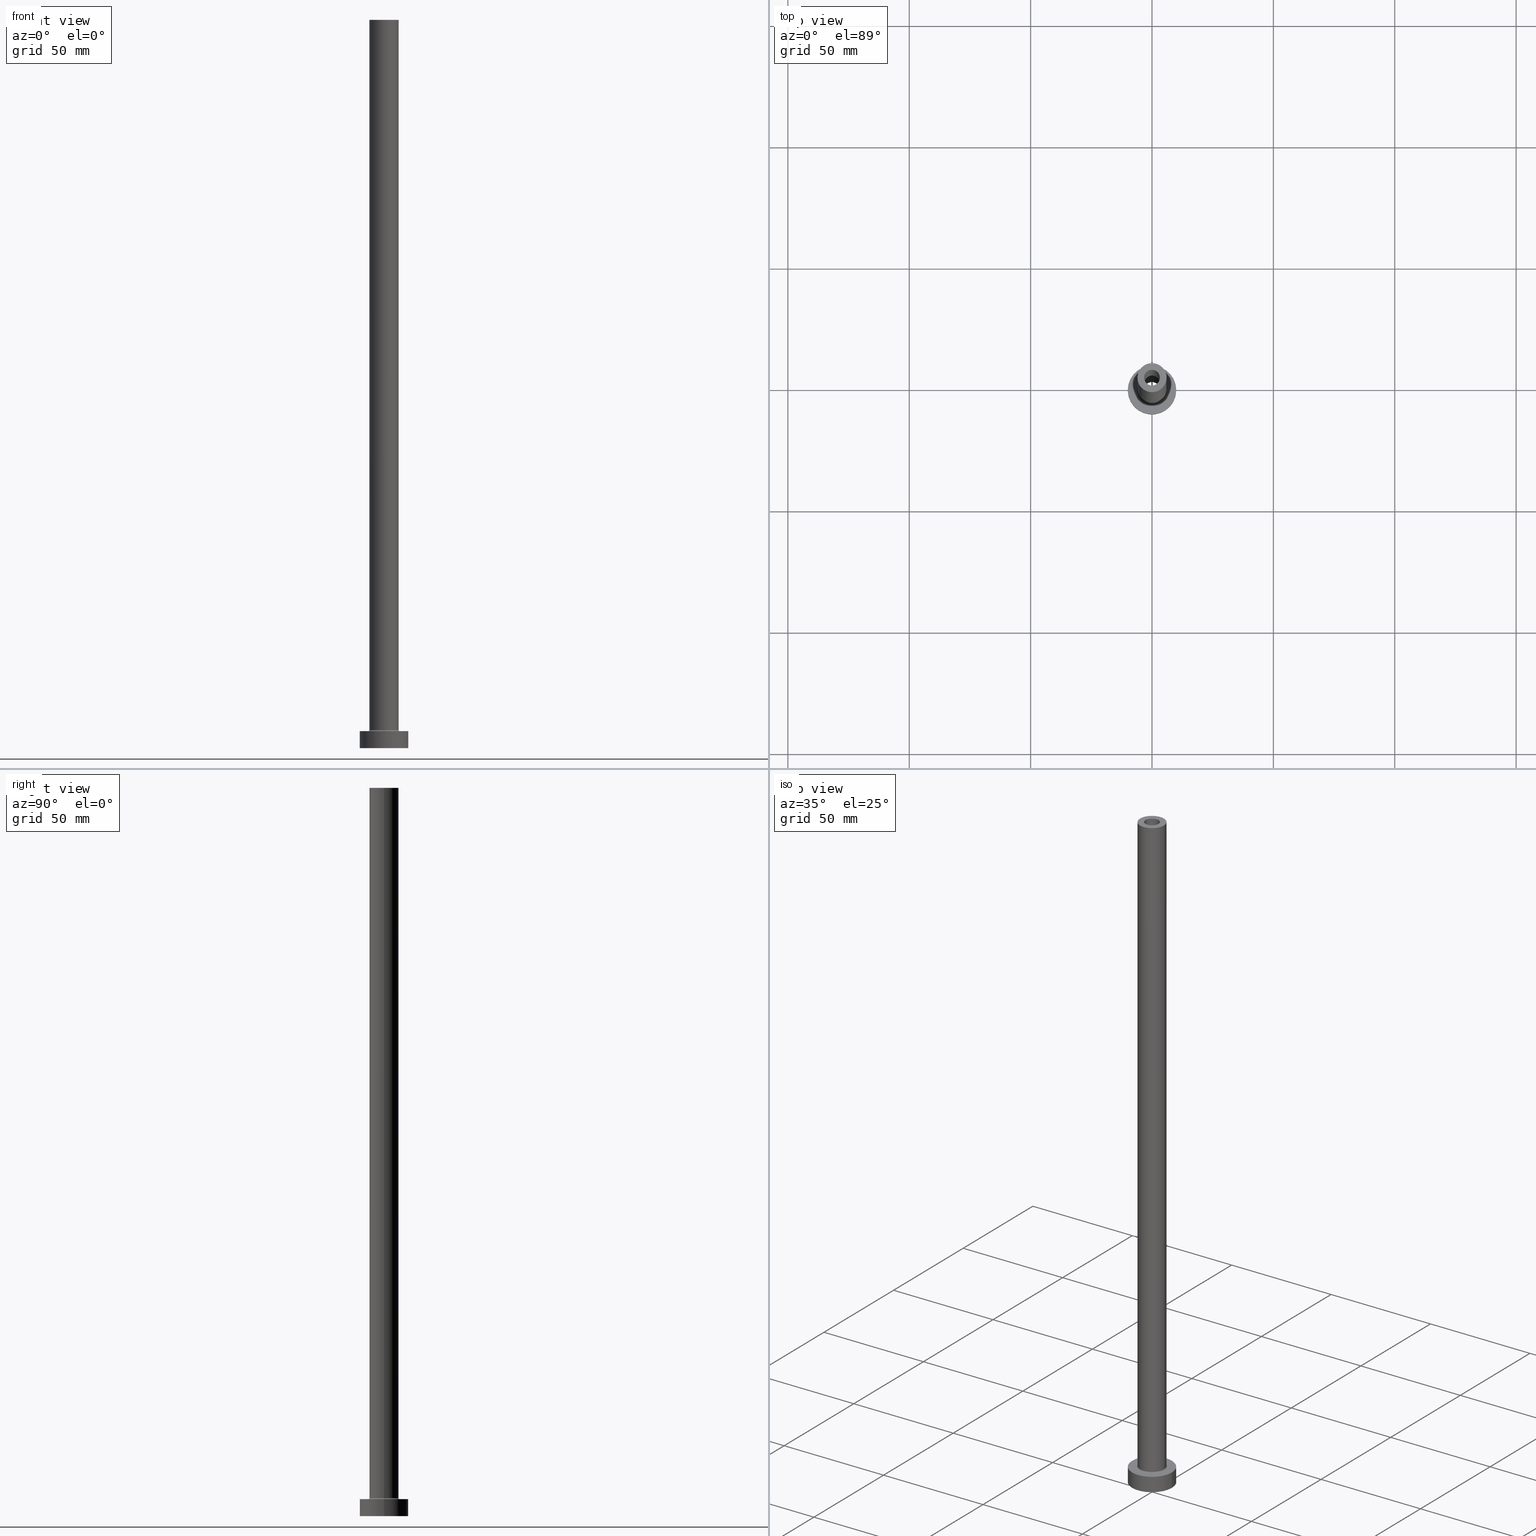
[diagram: canonical four-view strip — front | top / right | iso, engineering-drawing reading convention]
A machine part, canonical four-view strip (front | top / right | iso — engineering-drawing reading convention). The complete STEP part file that produces these views, byte-faithful:
ISO-10303-21;
HEADER;
FILE_DESCRIPTION (( 'STEP AP203' ),
    '1' );
FILE_NAME ('3f22.STEP',
    '2023-02-13T13:30:54',
    ( '' ),
    ( '' ),
    'SwSTEP 2.0',
    'SolidWorks 2019',
    '' );
FILE_SCHEMA (( 'CONFIG_CONTROL_DESIGN' ));
ENDSEC;

DATA;
#1 = APPROVAL_STATUS ( 'not_yet_approved' ) ;
#2 = CARTESIAN_POINT ( 'NONE',  ( -10.00000000000000000, 0.000000000000000000, 7.000000000000000000 ) ) ;
#3 = SHAPE_DEFINITION_REPRESENTATION ( #170, #97 ) ;
#4 = ORIENTED_EDGE ( 'NONE', *, *, #354, .F. ) ;
#5 = CYLINDRICAL_SURFACE ( 'NONE', #333, 10.00000000000000000 ) ;
#6 = AXIS2_PLACEMENT_3D ( 'NONE', #75, #185, #42 ) ;
#7 = FACE_OUTER_BOUND ( 'NONE', #77, .T. ) ;
#8 = PERSON_AND_ORGANIZATION ( #56, #309 ) ;
#9 = ORIENTED_EDGE ( 'NONE', *, *, #376, .T. ) ;
#10 = DIRECTION ( 'NONE',  ( 0.000000000000000000, 0.000000000000000000, -1.000000000000000000 ) ) ;
#11 = PERSON_AND_ORGANIZATION_ROLE ( 'creator' ) ;
#12 = FACE_OUTER_BOUND ( 'NONE', #404, .T. ) ;
#13 = DATE_TIME_ROLE ( 'creation_date' ) ;
#14 = ORIENTED_EDGE ( 'NONE', *, *, #307, .T. ) ;
#15 = TOROIDAL_SURFACE ( 'NONE', #172, 6.500000000000000888, 0.5000000000000000000 ) ;
#16 = LOCAL_TIME ( 14, 30, 53.00000000000000000, #369 ) ;
#17 = AXIS2_PLACEMENT_3D ( 'NONE', #322, #145, #283 ) ;
#18 = CARTESIAN_POINT ( 'NONE',  ( -6.500000000000000888, 7.960204194457796463E-16, 7.000000000000002665 ) ) ;
#19 = ORIENTED_EDGE ( 'NONE', *, *, #104, .F. ) ;
#20 = DIRECTION ( 'NONE',  ( 1.000000000000000000, 0.000000000000000000, 0.000000000000000000 ) ) ;
#21 = DIRECTION ( 'NONE',  ( 1.000000000000000000, 0.000000000000000000, 0.000000000000000000 ) ) ;
#22 = VERTEX_POINT ( 'NONE', #90 ) ;
#23 = CARTESIAN_POINT ( 'NONE',  ( 0.000000000000000000, 0.000000000000000000, 300.0000000000000000 ) ) ;
#24 = CARTESIAN_POINT ( 'NONE',  ( 0.000000000000000000, 0.000000000000000000, 300.0000000000000000 ) ) ;
#25 = ORIENTED_EDGE ( 'NONE', *, *, #278, .T. ) ;
#26 = ORIENTED_EDGE ( 'NONE', *, *, #278, .F. ) ;
#27 = APPROVAL_PERSON_ORGANIZATION ( #220, #455, #81 ) ;
#28 = EDGE_CURVE ( 'NONE', #246, #31, #419, .T. ) ;
#29 = EDGE_CURVE ( 'NONE', #443, #434, #211, .T. ) ;
#30 = DIRECTION ( 'NONE',  ( -1.000000000000000000, 0.000000000000000000, 0.000000000000000000 ) ) ;
#31 = VERTEX_POINT ( 'NONE', #128 ) ;
#32 = DIRECTION ( 'NONE',  ( 0.000000000000000000, 0.000000000000000000, -1.000000000000000000 ) ) ;
#33 = LINE ( 'NONE', #458, #166 ) ;
#34 = CARTESIAN_POINT ( 'NONE',  ( 0.000000000000000000, 0.000000000000000000, 7.000000000000000000 ) ) ;
#35 = CIRCLE ( 'NONE', #107, 3.399999999999999911 ) ;
#36 = CARTESIAN_POINT ( 'NONE',  ( 0.000000000000000000, 0.000000000000000000, 0.000000000000000000 ) ) ;
#37 = ORIENTED_EDGE ( 'NONE', *, *, #139, .F. ) ;
#38 = DIRECTION ( 'NONE',  ( 1.000000000000000000, 0.000000000000000000, 0.000000000000000000 ) ) ;
#39 = EDGE_CURVE ( 'NONE', #22, #120, #432, .T. ) ;
#40 = LINE ( 'NONE', #2, #243 ) ;
#41 = ORIENTED_EDGE ( 'NONE', *, *, #429, .T. ) ;
#42 = DIRECTION ( 'NONE',  ( 1.000000000000000000, 0.000000000000000000, 0.000000000000000000 ) ) ;
#43 = DATE_TIME_ROLE ( 'classification_date' ) ;
#44 = DIRECTION ( 'NONE',  ( -0.000000000000000000, -0.000000000000000000, -1.000000000000000000 ) ) ;
#45 = PLANE ( 'NONE',  #261 ) ;
#46 = ORIENTED_EDGE ( 'NONE', *, *, #303, .F. ) ;
#47 = APPLICATION_PROTOCOL_DEFINITION ( 'international standard', 'config_control_design', 1994, #352 ) ;
#48 = VERTEX_POINT ( 'NONE', #304 ) ;
#49 = CARTESIAN_POINT ( 'NONE',  ( 0.000000000000000000, 0.000000000000000000, 7.000000000000000000 ) ) ;
#50 = PERSON_AND_ORGANIZATION_ROLE ( 'design_owner' ) ;
#51 = VERTEX_POINT ( 'NONE', #382 ) ;
#52 = DIRECTION ( 'NONE',  ( 1.224646799147353207E-16, 1.000000000000000000, -0.000000000000000000 ) ) ;
#53 = CARTESIAN_POINT ( 'NONE',  ( 0.000000000000000000, 0.000000000000000000, 7.500000000000007105 ) ) ;
#54 = EDGE_CURVE ( 'NONE', #85, #209, #192, .T. ) ;
#55 = ORIENTED_EDGE ( 'NONE', *, *, #354, .T. ) ;
#56 = PERSON ( 'NEUR�EN�', 'NEUR�EN�', 'NEUR�EN�', ('NEUR�EN�'), ('NEUR�EN�'), ('NEUR�EN�') ) ;
#57 = AXIS2_PLACEMENT_3D ( 'NONE', #23, #410, #93 ) ;
#58 = CC_DESIGN_PERSON_AND_ORGANIZATION_ASSIGNMENT ( #8, #289, ( #431 ) ) ;
#59 = ADVANCED_FACE ( 'NONE', ( #266, #84 ), #45, .F. ) ;
#60 = ORIENTED_EDGE ( 'NONE', *, *, #29, .F. ) ;
#61 = CARTESIAN_POINT ( 'NONE',  ( 0.000000000000000000, 0.000000000000000000, 7.000000000000000000 ) ) ;
#62 = ORIENTED_EDGE ( 'NONE', *, *, #188, .T. ) ;
#63 = AXIS2_PLACEMENT_3D ( 'NONE', #53, #201, #344 ) ;
#64 = CC_DESIGN_APPROVAL ( #160, ( #306 ) ) ;
#65 = FACE_BOUND ( 'NONE', #126, .T. ) ;
#66 = EDGE_CURVE ( 'NONE', #209, #22, #371, .T. ) ;
#67 = ORIENTED_EDGE ( 'NONE', *, *, #307, .F. ) ;
#68 = PLANE ( 'NONE',  #176 ) ;
#69 = CIRCLE ( 'NONE', #378, 3.250000000000000444 ) ;
#70 = CIRCLE ( 'NONE', #227, 3.399999999999999911 ) ;
#71 = CC_DESIGN_PERSON_AND_ORGANIZATION_ASSIGNMENT ( #403, #11, ( #306 ) ) ;
#72 = EDGE_CURVE ( 'NONE', #401, #48, #35, .T. ) ;
#73 = DIRECTION ( 'NONE',  ( -1.000000000000000000, 0.000000000000000000, 0.000000000000000000 ) ) ;
#74 = ORIENTED_EDGE ( 'NONE', *, *, #191, .T. ) ;
#75 = CARTESIAN_POINT ( 'NONE',  ( 0.000000000000000000, 0.000000000000000000, 7.500000000000007105 ) ) ;
#76 = CYLINDRICAL_SURFACE ( 'NONE', #96, 6.000000000000000888 ) ;
#77 = EDGE_LOOP ( 'NONE', ( #26, #305, #9, #113 ) ) ;
#78 = PLANE ( 'NONE',  #315 ) ;
#79 = DIRECTION ( 'NONE',  ( 1.000000000000000000, 0.000000000000000000, 0.000000000000000000 ) ) ;
#80 = AXIS2_PLACEMENT_3D ( 'NONE', #123, #258, #379 ) ;
#81 = APPROVAL_ROLE ( '' ) ;
#82 = DIRECTION ( 'NONE',  ( 0.000000000000000000, 0.000000000000000000, 1.000000000000000000 ) ) ;
#83 = ORIENTED_EDGE ( 'NONE', *, *, #138, .T. ) ;
#84 = FACE_OUTER_BOUND ( 'NONE', #335, .T. ) ;
#85 = VERTEX_POINT ( 'NONE', #433 ) ;
#86 = CIRCLE ( 'NONE', #271, 3.399999999999999911 ) ;
#87 = DIRECTION ( 'NONE',  ( 0.000000000000000000, 0.000000000000000000, 1.000000000000000000 ) ) ;
#88 = APPROVAL_STATUS ( 'not_yet_approved' ) ;
#89 = EDGE_LOOP ( 'NONE', ( #60, #295, #62, #37 ) ) ;
#90 = CARTESIAN_POINT ( 'NONE',  ( -6.000000000000000888, 0.000000000000000000, 7.500000000000007105 ) ) ;
#91 = DIRECTION ( 'NONE',  ( 1.000000000000000000, 0.000000000000000000, 0.000000000000000000 ) ) ;
#92 = VERTEX_POINT ( 'NONE', #255 ) ;
#93 = DIRECTION ( 'NONE',  ( 1.000000000000000000, 0.000000000000000000, 0.000000000000000000 ) ) ;
#94 = AXIS2_PLACEMENT_3D ( 'NONE', #182, #277, #179 ) ;
#95 = CIRCLE ( 'NONE', #349, 6.500000000000000888 ) ;
#96 = AXIS2_PLACEMENT_3D ( 'NONE', #108, #111, #73 ) ;
#97 = ADVANCED_BREP_SHAPE_REPRESENTATION ( '3f22', ( #370, #390 ), #314 ) ;
#98 = CARTESIAN_POINT ( 'NONE',  ( -3.250000000000000444, 0.000000000000000000, 300.0000000000000000 ) ) ;
#99 = DIRECTION ( 'NONE',  ( 1.000000000000000000, 0.000000000000000000, 0.000000000000000000 ) ) ;
#100 = DIRECTION ( 'NONE',  ( 0.000000000000000000, 0.000000000000000000, -1.000000000000000000 ) ) ;
#101 = LOCAL_TIME ( 14, 30, 53.00000000000000000, #316 ) ;
#102 = FACE_OUTER_BOUND ( 'NONE', #268, .T. ) ;
#103 = CC_DESIGN_DATE_AND_TIME_ASSIGNMENT ( #253, #43, ( #262 ) ) ;
#104 = EDGE_CURVE ( 'NONE', #31, #246, #154, .T. ) ;
#105 = CIRCLE ( 'NONE', #373, 10.00000000000000000 ) ;
#106 = APPROVAL_PERSON_ORGANIZATION ( #301, #160, #447 ) ;
#107 = AXIS2_PLACEMENT_3D ( 'NONE', #189, #331, #297 ) ;
#108 = CARTESIAN_POINT ( 'NONE',  ( 0.000000000000000000, 0.000000000000000000, 300.0000000000000000 ) ) ;
#109 = ORIENTED_EDGE ( 'NONE', *, *, #54, .T. ) ;
#110 = CARTESIAN_POINT ( 'NONE',  ( 0.000000000000000000, 0.000000000000000000, 7.000000000000000000 ) ) ;
#111 = DIRECTION ( 'NONE',  ( -0.000000000000000000, -0.000000000000000000, -1.000000000000000000 ) ) ;
#112 = DATE_AND_TIME ( #178, #16 ) ;
#113 = ORIENTED_EDGE ( 'NONE', *, *, #125, .F. ) ;
#114 = DIRECTION ( 'NONE',  ( 0.000000000000000000, 0.000000000000000000, 1.000000000000000000 ) ) ;
#115 = DIRECTION ( 'NONE',  ( -0.000000000000000000, -0.000000000000000000, -1.000000000000000000 ) ) ;
#116 = CALENDAR_DATE ( 2023, 13, 2 ) ;
#117 = LOCAL_TIME ( 14, 30, 53.00000000000000000, #152 ) ;
#118 = AXIS2_PLACEMENT_3D ( 'NONE', #61, #313, #135 ) ;
#119 = APPROVAL_STATUS ( 'not_yet_approved' ) ;
#120 = VERTEX_POINT ( 'NONE', #18 ) ;
#121 = APPROVAL_DATE_TIME ( #374, #160 ) ;
#122 = ORIENTED_EDGE ( 'NONE', *, *, #39, .T. ) ;
#123 = CARTESIAN_POINT ( 'NONE',  ( 0.000000000000000000, 0.000000000000000000, 300.0000000000000000 ) ) ;
#124 = APPROVAL ( #119, 'NEUR�EN�' ) ;
#125 = EDGE_CURVE ( 'NONE', #347, #92, #69, .T. ) ;
#126 = EDGE_LOOP ( 'NONE', ( #339, #298 ) ) ;
#127 = EDGE_CURVE ( 'NONE', #22, #51, #336, .T. ) ;
#128 = CARTESIAN_POINT ( 'NONE',  ( 3.250000000000000444, 3.980102097228897245E-16, 300.0000000000000000 ) ) ;
#129 = CARTESIAN_POINT ( 'NONE',  ( -3.250000000000000444, 0.000000000000000000, 300.0000000000000000 ) ) ;
#130 = DIRECTION ( 'NONE',  ( 1.000000000000000000, 0.000000000000000000, 0.000000000000000000 ) ) ;
#131 = ORIENTED_EDGE ( 'NONE', *, *, #415, .F. ) ;
#132 = VECTOR ( 'NONE', #383, 1000.000000000000000 ) ;
#133 = CYLINDRICAL_SURFACE ( 'NONE', #254, 3.399999999999999911 ) ;
#134 = AXIS2_PLACEMENT_3D ( 'NONE', #400, #82, #334 ) ;
#135 = DIRECTION ( 'NONE',  ( 1.000000000000000000, 0.000000000000000000, -0.000000000000000000 ) ) ;
#136 = ORIENTED_EDGE ( 'NONE', *, *, #357, .T. ) ;
#137 = ADVANCED_FACE ( 'NONE', ( #251, #12 ), #78, .T. ) ;
#138 = EDGE_CURVE ( 'NONE', #85, #51, #187, .T. ) ;
#139 = EDGE_CURVE ( 'NONE', #434, #256, #40, .T. ) ;
#140 = CARTESIAN_POINT ( 'NONE',  ( 6.500000000000000888, 0.000000000000000000, 7.000000000000002665 ) ) ;
#141 = AXIS2_PLACEMENT_3D ( 'NONE', #263, #52, #230 ) ;
#142 = CC_DESIGN_APPROVAL ( #455, ( #262 ) ) ;
#143 = VERTEX_POINT ( 'NONE', #366 ) ;
#144 = DIRECTION ( 'NONE',  ( -1.000000000000000000, 0.000000000000000000, 0.000000000000000000 ) ) ;
#145 = DIRECTION ( 'NONE',  ( 0.000000000000000000, 0.000000000000000000, -1.000000000000000000 ) ) ;
#146 = APPROVAL_DATE_TIME ( #112, #455 ) ;
#147 = ORIENTED_EDGE ( 'NONE', *, *, #233, .T. ) ;
#148 = DIRECTION ( 'NONE',  ( 0.000000000000000000, 0.000000000000000000, -1.000000000000000000 ) ) ;
#149 = PERSON_AND_ORGANIZATION ( #56, #309 ) ;
#150 = CARTESIAN_POINT ( 'NONE',  ( 0.000000000000000000, 0.000000000000000000, 0.000000000000000000 ) ) ;
#151 = DIRECTION ( 'NONE',  ( 1.000000000000000000, 0.000000000000000000, -0.000000000000000000 ) ) ;
#152 = COORDINATED_UNIVERSAL_TIME_OFFSET ( 1, 0, .AHEAD. ) ;
#153 = DIRECTION ( 'NONE',  ( 1.000000000000000000, 0.000000000000000000, -0.000000000000000000 ) ) ;
#154 = CIRCLE ( 'NONE', #134, 3.250000000000000444 ) ;
#155 = ORIENTED_EDGE ( 'NONE', *, *, #357, .F. ) ;
#156 = CC_DESIGN_APPROVAL ( #124, ( #431 ) ) ;
#157 = AXIS2_PLACEMENT_3D ( 'NONE', #287, #361, #38 ) ;
#158 = CARTESIAN_POINT ( 'NONE',  ( 0.000000000000000000, 0.000000000000000000, 255.0000000000000000 ) ) ;
#159 = EDGE_LOOP ( 'NONE', ( #14, #387 ) ) ;
#160 = APPROVAL ( #88, 'NEUR�EN�' ) ;
#161 = ADVANCED_FACE ( 'NONE', ( #395 ), #76, .T. ) ;
#162 = DIRECTION ( 'NONE',  ( 0.000000000000000000, 0.000000000000000000, 1.000000000000000000 ) ) ;
#163 = EDGE_LOOP ( 'NONE', ( #343, #250 ) ) ;
#164 = CARTESIAN_POINT ( 'NONE',  ( -3.399999999999999911, 0.000000000000000000, 0.000000000000000000 ) ) ;
#165 = APPLICATION_PROTOCOL_DEFINITION ( 'international standard', 'config_control_design', 1994, #327 ) ;
#166 = VECTOR ( 'NONE', #100, 1000.000000000000000 ) ;
#167 = ORIENTED_EDGE ( 'NONE', *, *, #456, .F. ) ;
#168 = PRODUCT ( '3f22', '3f22', '', ( #260 ) ) ;
#169 = ORIENTED_EDGE ( 'NONE', *, *, #72, .F. ) ;
#170 = PRODUCT_DEFINITION_SHAPE ( 'NONE', 'NONE',  #306 ) ;
#171 = PLANE ( 'NONE',  #118 ) ;
#172 = AXIS2_PLACEMENT_3D ( 'NONE', #388, #207, #99 ) ;
#173 = CARTESIAN_POINT ( 'NONE',  ( 0.000000000000000000, 0.000000000000000000, 300.0000000000000000 ) ) ;
#174 = CYLINDRICAL_SURFACE ( 'NONE', #293, 3.399999999999999911 ) ;
#175 = UNCERTAINTY_MEASURE_WITH_UNIT (LENGTH_MEASURE( 1.000000000000000082E-05 ), #312, 'distance_accuracy_value', 'NONE');
#176 = AXIS2_PLACEMENT_3D ( 'NONE', #417, #208, #351 ) ;
#177 = VECTOR ( 'NONE', #10, 1000.000000000000000 ) ;
#178 = CALENDAR_DATE ( 2023, 13, 2 ) ;
#179 = DIRECTION ( 'NONE',  ( 0.000000000000000000, 0.000000000000000000, -1.000000000000000000 ) ) ;
#180 = EDGE_LOOP ( 'NONE', ( #450, #226, #74, #167 ) ) ;
#181 = CARTESIAN_POINT ( 'NONE',  ( 3.250000000000000444, 3.980102097228897245E-16, 255.0000000000000000 ) ) ;
#182 = CARTESIAN_POINT ( 'NONE',  ( 6.500000000000000888, 0.000000000000000000, 7.500000000000007105 ) ) ;
#183 = DATE_AND_TIME ( #398, #323 ) ;
#184 = EDGE_LOOP ( 'NONE', ( #320, #213, #360, #426 ) ) ;
#185 = DIRECTION ( 'NONE',  ( 0.000000000000000000, 0.000000000000000000, 1.000000000000000000 ) ) ;
#186 = COORDINATED_UNIVERSAL_TIME_OFFSET ( 1, 0, .AHEAD. ) ;
#187 = LINE ( 'NONE', #329, #308 ) ;
#188 = EDGE_CURVE ( 'NONE', #363, #256, #105, .T. ) ;
#189 = CARTESIAN_POINT ( 'NONE',  ( 0.000000000000000000, 0.000000000000000000, 255.0000000000000000 ) ) ;
#190 = CC_DESIGN_DATE_AND_TIME_ASSIGNMENT ( #359, #13, ( #306 ) ) ;
#191 = EDGE_CURVE ( 'NONE', #51, #205, #451, .T. ) ;
#192 = CIRCLE ( 'NONE', #310, 6.000000000000000888 ) ;
#193 = ORIENTED_EDGE ( 'NONE', *, *, #456, .T. ) ;
#194 = AXIS2_PLACEMENT_3D ( 'NONE', #264, #162, #408 ) ;
#195 = VECTOR ( 'NONE', #148, 1000.000000000000000 ) ;
#196 = CALENDAR_DATE ( 2023, 13, 2 ) ;
#197 = ORIENTED_EDGE ( 'NONE', *, *, #72, .T. ) ;
#198 = CYLINDRICAL_SURFACE ( 'NONE', #244, 3.250000000000000444 ) ;
#199 = ORIENTED_EDGE ( 'NONE', *, *, #446, .F. ) ;
#200 = CARTESIAN_POINT ( 'NONE',  ( 0.000000000000000000, 0.000000000000000000, 300.0000000000000000 ) ) ;
#201 = DIRECTION ( 'NONE',  ( 0.000000000000000000, 0.000000000000000000, 1.000000000000000000 ) ) ;
#202 = ORIENTED_EDGE ( 'NONE', *, *, #415, .T. ) ;
#203 = EDGE_LOOP ( 'NONE', ( #342, #83, #215, #423 ) ) ;
#204 = DIRECTION ( 'NONE',  ( -1.000000000000000000, 0.000000000000000000, 0.000000000000000000 ) ) ;
#205 = VERTEX_POINT ( 'NONE', #140 ) ;
#206 = EDGE_CURVE ( 'NONE', #443, #363, #319, .T. ) ;
#207 = DIRECTION ( 'NONE',  ( 0.000000000000000000, 0.000000000000000000, 1.000000000000000000 ) ) ;
#208 = DIRECTION ( 'NONE',  ( 0.000000000000000000, 0.000000000000000000, 1.000000000000000000 ) ) ;
#209 = VERTEX_POINT ( 'NONE', #362 ) ;
#210 = DIRECTION ( 'NONE',  ( 0.000000000000000000, 0.000000000000000000, 1.000000000000000000 ) ) ;
#211 = CIRCLE ( 'NONE', #386, 10.00000000000000000 ) ;
#212 = AXIS2_PLACEMENT_3D ( 'NONE', #247, #394, #91 ) ;
#213 = ORIENTED_EDGE ( 'NONE', *, *, #429, .F. ) ;
#214 = DIRECTION ( 'NONE',  ( -0.000000000000000000, -0.000000000000000000, -1.000000000000000000 ) ) ;
#215 = ORIENTED_EDGE ( 'NONE', *, *, #399, .T. ) ;
#216 = CYLINDRICAL_SURFACE ( 'NONE', #17, 3.250000000000000444 ) ;
#217 = AXIS2_PLACEMENT_3D ( 'NONE', #173, #210, #392 ) ;
#218 = DIRECTION ( 'NONE',  ( 1.000000000000000000, 0.000000000000000000, 0.000000000000000000 ) ) ;
#219 = DIRECTION ( 'NONE',  ( -1.000000000000000000, 0.000000000000000000, 0.000000000000000000 ) ) ;
#220 = PERSON_AND_ORGANIZATION ( #56, #309 ) ;
#221 = DIRECTION ( 'NONE',  ( 0.000000000000000000, 0.000000000000000000, 1.000000000000000000 ) ) ;
#222 = ADVANCED_FACE ( 'NONE', ( #7 ), #216, .F. ) ;
#223 = ORIENTED_EDGE ( 'NONE', *, *, #391, .F. ) ;
#224 = CARTESIAN_POINT ( 'NONE',  ( 0.000000000000000000, 0.000000000000000000, 0.000000000000000000 ) ) ;
#225 = CLOSED_SHELL ( 'NONE', ( #365, #267, #269, #161, #236, #270, #248, #59, #402, #137, #259, #237, #436, #222 ) ) ;
#226 = ORIENTED_EDGE ( 'NONE', *, *, #399, .F. ) ;
#227 = AXIS2_PLACEMENT_3D ( 'NONE', #228, #87, #20 ) ;
#228 = CARTESIAN_POINT ( 'NONE',  ( 0.000000000000000000, 0.000000000000000000, 255.0000000000000000 ) ) ;
#229 = ORIENTED_EDGE ( 'NONE', *, *, #28, .F. ) ;
#230 = DIRECTION ( 'NONE',  ( -1.000000000000000000, 1.224646799147351482E-16, 0.000000000000000000 ) ) ;
#231 = FACE_OUTER_BOUND ( 'NONE', #265, .T. ) ;
#232 = ORIENTED_EDGE ( 'NONE', *, *, #191, .F. ) ;
#233 = EDGE_CURVE ( 'NONE', #143, #372, #86, .T. ) ;
#234 = APPROVAL_PERSON_ORGANIZATION ( #149, #124, #280 ) ;
#235 = AXIS2_PLACEMENT_3D ( 'NONE', #110, #428, #79 ) ;
#236 = ADVANCED_FACE ( 'NONE', ( #452 ), #350, .T. ) ;
#237 = ADVANCED_FACE ( 'NONE', ( #414 ), #133, .F. ) ;
#238 = CARTESIAN_POINT ( 'NONE',  ( -10.00000000000000000, 0.000000000000000000, 0.000000000000000000 ) ) ;
#239 = FACE_OUTER_BOUND ( 'NONE', #159, .T. ) ;
#240 = DIRECTION ( 'NONE',  ( 1.000000000000000000, 0.000000000000000000, 0.000000000000000000 ) ) ;
#241 = CIRCLE ( 'NONE', #63, 6.000000000000000888 ) ;
#242 = DIRECTION ( 'NONE',  ( -0.000000000000000000, -0.000000000000000000, -1.000000000000000000 ) ) ;
#243 = VECTOR ( 'NONE', #214, 1000.000000000000000 ) ;
#244 = AXIS2_PLACEMENT_3D ( 'NONE', #24, #341, #300 ) ;
#245 = CARTESIAN_POINT ( 'NONE',  ( 10.00000000000000000, 1.224646799147353256E-15, 7.000000000000000000 ) ) ;
#246 = VERTEX_POINT ( 'NONE', #98 ) ;
#247 = CARTESIAN_POINT ( 'NONE',  ( 0.000000000000000000, 0.000000000000000000, 0.000000000000000000 ) ) ;
#248 = ADVANCED_FACE ( 'NONE', ( #457, #239 ), #171, .T. ) ;
#249 = DIRECTION ( 'NONE',  ( -0.000000000000000000, -0.000000000000000000, -1.000000000000000000 ) ) ;
#250 = ORIENTED_EDGE ( 'NONE', *, *, #233, .F. ) ;
#251 = FACE_BOUND ( 'NONE', #281, .T. ) ;
#252 = FACE_OUTER_BOUND ( 'NONE', #407, .T. ) ;
#253 = DATE_AND_TIME ( #116, #101 ) ;
#254 = AXIS2_PLACEMENT_3D ( 'NONE', #272, #32, #204 ) ;
#255 = CARTESIAN_POINT ( 'NONE',  ( -3.250000000000000444, 0.000000000000000000, 255.0000000000000000 ) ) ;
#256 = VERTEX_POINT ( 'NONE', #238 ) ;
#257 = ORIENTED_EDGE ( 'NONE', *, *, #446, .T. ) ;
#258 = DIRECTION ( 'NONE',  ( -0.000000000000000000, -0.000000000000000000, -1.000000000000000000 ) ) ;
#259 = ADVANCED_FACE ( 'NONE', ( #273 ), #15, .F. ) ;
#260 = MECHANICAL_CONTEXT ( 'NONE', #327, 'mechanical' ) ;
#261 = AXIS2_PLACEMENT_3D ( 'NONE', #150, #221, #153 ) ;
#262 = SECURITY_CLASSIFICATION ( '', '', #330 ) ;
#263 = CARTESIAN_POINT ( 'NONE',  ( -6.500000000000000888, 7.960204194457796463E-16, 7.500000000000007105 ) ) ;
#264 = CARTESIAN_POINT ( 'NONE',  ( 0.000000000000000000, 0.000000000000000000, 255.0000000000000000 ) ) ;
#265 = EDGE_LOOP ( 'NONE', ( #285, #25, #223, #302 ) ) ;
#266 = FACE_BOUND ( 'NONE', #163, .T. ) ;
#267 = ADVANCED_FACE ( 'NONE', ( #416 ), #174, .F. ) ;
#268 = EDGE_LOOP ( 'NONE', ( #155, #169 ) ) ;
#269 = ADVANCED_FACE ( 'NONE', ( #252 ), #290, .F. ) ;
#270 = ADVANCED_FACE ( 'NONE', ( #282 ), #5, .T. ) ;
#271 = AXIS2_PLACEMENT_3D ( 'NONE', #425, #249, #311 ) ;
#272 = CARTESIAN_POINT ( 'NONE',  ( 0.000000000000000000, 0.000000000000000000, 264.6166522241369989 ) ) ;
#273 = FACE_OUTER_BOUND ( 'NONE', #180, .T. ) ;
#274 = CARTESIAN_POINT ( 'NONE',  ( -10.00000000000000000, 0.000000000000000000, 7.000000000000000000 ) ) ;
#275 = DIRECTION ( 'NONE',  ( -0.000000000000000000, -0.000000000000000000, -1.000000000000000000 ) ) ;
#276 = CALENDAR_DATE ( 2023, 13, 2 ) ;
#277 = DIRECTION ( 'NONE',  ( 0.000000000000000000, -1.000000000000000000, 0.000000000000000000 ) ) ;
#278 = EDGE_CURVE ( 'NONE', #31, #347, #321, .T. ) ;
#279 = VECTOR ( 'NONE', #393, 1000.000000000000000 ) ;
#280 = APPROVAL_ROLE ( '' ) ;
#281 = EDGE_LOOP ( 'NONE', ( #229, #19 ) ) ;
#282 = FACE_OUTER_BOUND ( 'NONE', #409, .T. ) ;
#283 = DIRECTION ( 'NONE',  ( -1.000000000000000000, 0.000000000000000000, 0.000000000000000000 ) ) ;
#284 = APPROVAL_DATE_TIME ( #183, #124 ) ;
#285 = ORIENTED_EDGE ( 'NONE', *, *, #28, .T. ) ;
#286 = CARTESIAN_POINT ( 'NONE',  ( 0.000000000000000000, 0.000000000000000000, 300.0000000000000000 ) ) ;
#287 = CARTESIAN_POINT ( 'NONE',  ( 0.000000000000000000, 0.000000000000000000, 0.000000000000000000 ) ) ;
#288 = PERSON_AND_ORGANIZATION_ROLE ( 'classification_officer' ) ;
#289 = PERSON_AND_ORGANIZATION_ROLE ( 'design_supplier' ) ;
#290 = TOROIDAL_SURFACE ( 'NONE', #6, 6.500000000000000888, 0.5000000000000000000 ) ;
#291 = CARTESIAN_POINT ( 'NONE',  ( -6.000000000000000888, 0.000000000000000000, 300.0000000000000000 ) ) ;
#292 = ORIENTED_EDGE ( 'NONE', *, *, #303, .T. ) ;
#293 = AXIS2_PLACEMENT_3D ( 'NONE', #459, #364, #219 ) ;
#294 = DIRECTION ( 'NONE',  ( 0.000000000000000000, 0.000000000000000000, 1.000000000000000000 ) ) ;
#295 = ORIENTED_EDGE ( 'NONE', *, *, #206, .T. ) ;
#296 = CYLINDRICAL_SURFACE ( 'NONE', #80, 6.000000000000000888 ) ;
#297 = DIRECTION ( 'NONE',  ( 1.000000000000000000, 0.000000000000000000, 0.000000000000000000 ) ) ;
#298 = ORIENTED_EDGE ( 'NONE', *, *, #125, .T. ) ;
#299 = DIRECTION ( 'NONE',  ( 1.000000000000000000, 0.000000000000000000, 0.000000000000000000 ) ) ;
#300 = DIRECTION ( 'NONE',  ( -1.000000000000000000, 0.000000000000000000, 0.000000000000000000 ) ) ;
#301 = PERSON_AND_ORGANIZATION ( #56, #309 ) ;
#302 = ORIENTED_EDGE ( 'NONE', *, *, #376, .F. ) ;
#303 = EDGE_CURVE ( 'NONE', #401, #143, #326, .T. ) ;
#304 = CARTESIAN_POINT ( 'NONE',  ( -3.399999999999999911, 0.000000000000000000, 255.0000000000000000 ) ) ;
#305 = ORIENTED_EDGE ( 'NONE', *, *, #104, .T. ) ;
#306 = PRODUCT_DEFINITION ( 'NEZN�M�', '', #431, #437 ) ;
#307 = EDGE_CURVE ( 'NONE', #434, #443, #454, .T. ) ;
#308 = VECTOR ( 'NONE', #427, 1000.000000000000000 ) ;
#309 = ORGANIZATION ( 'NEUR�EN�', 'NEUR�EN�', '' ) ;
#310 = AXIS2_PLACEMENT_3D ( 'NONE', #200, #449, #130 ) ;
#311 = DIRECTION ( 'NONE',  ( 1.000000000000000000, 0.000000000000000000, 0.000000000000000000 ) ) ;
#312 =( LENGTH_UNIT ( ) NAMED_UNIT ( * ) SI_UNIT ( .MILLI., .METRE. ) );
#313 = DIRECTION ( 'NONE',  ( 0.000000000000000000, 0.000000000000000000, 1.000000000000000000 ) ) ;
#314 =( GEOMETRIC_REPRESENTATION_CONTEXT ( 3 ) GLOBAL_UNCERTAINTY_ASSIGNED_CONTEXT ( ( #175 ) ) GLOBAL_UNIT_ASSIGNED_CONTEXT ( ( #312, #460, #380 ) ) REPRESENTATION_CONTEXT ( 'NONE', 'WORKASPACE' ) );
#315 = AXIS2_PLACEMENT_3D ( 'NONE', #286, #367, #151 ) ;
#316 = COORDINATED_UNIVERSAL_TIME_OFFSET ( 1, 0, .AHEAD. ) ;
#317 = CC_DESIGN_PERSON_AND_ORGANIZATION_ASSIGNMENT ( #442, #50, ( #168 ) ) ;
#318 = EDGE_CURVE ( 'NONE', #372, #143, #422, .T. ) ;
#319 = LINE ( 'NONE', #245, #279 ) ;
#320 = ORIENTED_EDGE ( 'NONE', *, *, #138, .F. ) ;
#321 = LINE ( 'NONE', #397, #195 ) ;
#322 = CARTESIAN_POINT ( 'NONE',  ( 0.000000000000000000, 0.000000000000000000, 300.0000000000000000 ) ) ;
#323 = LOCAL_TIME ( 14, 30, 53.00000000000000000, #186 ) ;
#324 = PERSON_AND_ORGANIZATION_ROLE ( 'creator' ) ;
#325 = ORIENTED_EDGE ( 'NONE', *, *, #318, .T. ) ;
#326 = LINE ( 'NONE', #368, #177 ) ;
#327 = APPLICATION_CONTEXT ( 'configuration controlled 3d designs of mechanical parts and assemblies' ) ;
#328 = PERSON_AND_ORGANIZATION ( #56, #309 ) ;
#329 = CARTESIAN_POINT ( 'NONE',  ( 6.000000000000000888, 7.347880794884120722E-16, 300.0000000000000000 ) ) ;
#330 = SECURITY_CLASSIFICATION_LEVEL ( 'unclassified' ) ;
#331 = DIRECTION ( 'NONE',  ( 0.000000000000000000, 0.000000000000000000, 1.000000000000000000 ) ) ;
#332 = ORIENTED_EDGE ( 'NONE', *, *, #206, .F. ) ;
#333 = AXIS2_PLACEMENT_3D ( 'NONE', #424, #115, #144 ) ;
#334 = DIRECTION ( 'NONE',  ( 1.000000000000000000, 0.000000000000000000, 0.000000000000000000 ) ) ;
#335 = EDGE_LOOP ( 'NONE', ( #4, #340 ) ) ;
#336 = CIRCLE ( 'NONE', #411, 6.000000000000000888 ) ;
#337 = CARTESIAN_POINT ( 'NONE',  ( 3.399999999999999911, 4.163799117101000559E-16, 255.0000000000000000 ) ) ;
#338 = DIRECTION ( 'NONE',  ( 0.000000000000000000, 0.000000000000000000, 1.000000000000000000 ) ) ;
#339 = ORIENTED_EDGE ( 'NONE', *, *, #391, .T. ) ;
#340 = ORIENTED_EDGE ( 'NONE', *, *, #188, .F. ) ;
#341 = DIRECTION ( 'NONE',  ( 0.000000000000000000, 0.000000000000000000, -1.000000000000000000 ) ) ;
#342 = ORIENTED_EDGE ( 'NONE', *, *, #54, .F. ) ;
#343 = ORIENTED_EDGE ( 'NONE', *, *, #318, .F. ) ;
#344 = DIRECTION ( 'NONE',  ( 1.000000000000000000, 0.000000000000000000, 0.000000000000000000 ) ) ;
#345 = CC_DESIGN_SECURITY_CLASSIFICATION ( #262, ( #431 ) ) ;
#346 = CARTESIAN_POINT ( 'NONE',  ( 0.000000000000000000, 0.000000000000000000, 7.000000000000000000 ) ) ;
#347 = VERTEX_POINT ( 'NONE', #181 ) ;
#348 = AXIS2_PLACEMENT_3D ( 'NONE', #346, #389, #30 ) ;
#349 = AXIS2_PLACEMENT_3D ( 'NONE', #34, #275, #240 ) ;
#350 = CYLINDRICAL_SURFACE ( 'NONE', #348, 10.00000000000000000 ) ;
#351 = DIRECTION ( 'NONE',  ( 1.000000000000000000, 0.000000000000000000, -0.000000000000000000 ) ) ;
#352 = APPLICATION_CONTEXT ( 'configuration controlled 3d designs of mechanical parts and assemblies' ) ;
#353 = CARTESIAN_POINT ( 'NONE',  ( 10.00000000000000000, 1.224646799147353256E-15, 7.000000000000000000 ) ) ;
#354 = EDGE_CURVE ( 'NONE', #256, #363, #413, .T. ) ;
#355 = CIRCLE ( 'NONE', #420, 6.500000000000000888 ) ;
#356 = CC_DESIGN_PERSON_AND_ORGANIZATION_ASSIGNMENT ( #430, #324, ( #431 ) ) ;
#357 = EDGE_CURVE ( 'NONE', #48, #401, #70, .T. ) ;
#358 = DIRECTION ( 'NONE',  ( 1.000000000000000000, 0.000000000000000000, 0.000000000000000000 ) ) ;
#359 = DATE_AND_TIME ( #276, #117 ) ;
#360 = ORIENTED_EDGE ( 'NONE', *, *, #66, .T. ) ;
#361 = DIRECTION ( 'NONE',  ( -0.000000000000000000, -0.000000000000000000, -1.000000000000000000 ) ) ;
#362 = CARTESIAN_POINT ( 'NONE',  ( -6.000000000000000888, 0.000000000000000000, 300.0000000000000000 ) ) ;
#363 = VERTEX_POINT ( 'NONE', #405 ) ;
#364 = DIRECTION ( 'NONE',  ( 0.000000000000000000, 0.000000000000000000, -1.000000000000000000 ) ) ;
#365 = ADVANCED_FACE ( 'NONE', ( #231 ), #198, .F. ) ;
#366 = CARTESIAN_POINT ( 'NONE',  ( 3.399999999999999911, 4.163799117101000559E-16, 0.000000000000000000 ) ) ;
#367 = DIRECTION ( 'NONE',  ( 0.000000000000000000, 0.000000000000000000, 1.000000000000000000 ) ) ;
#368 = CARTESIAN_POINT ( 'NONE',  ( 3.399999999999999911, 4.163799117101000559E-16, 264.6166522241369989 ) ) ;
#369 = COORDINATED_UNIVERSAL_TIME_OFFSET ( 1, 0, .AHEAD. ) ;
#370 = MANIFOLD_SOLID_BREP ( 'Odebrat vysunut�m4', #225 ) ;
#371 = LINE ( 'NONE', #291, #461 ) ;
#372 = VERTEX_POINT ( 'NONE', #164 ) ;
#373 = AXIS2_PLACEMENT_3D ( 'NONE', #36, #421, #358 ) ;
#374 = DATE_AND_TIME ( #196, #406 ) ;
#375 = PRODUCT_RELATED_PRODUCT_CATEGORY ( 'detail', '', ( #168 ) ) ;
#376 = EDGE_CURVE ( 'NONE', #246, #92, #445, .T. ) ;
#377 = EDGE_LOOP ( 'NONE', ( #136, #292, #147, #199 ) ) ;
#378 = AXIS2_PLACEMENT_3D ( 'NONE', #158, #294, #439 ) ;
#379 = DIRECTION ( 'NONE',  ( -1.000000000000000000, 0.000000000000000000, 0.000000000000000000 ) ) ;
#380 =( NAMED_UNIT ( * ) SI_UNIT ( $, .STERADIAN. ) SOLID_ANGLE_UNIT ( ) );
#381 = EDGE_LOOP ( 'NONE', ( #46, #197, #257, #325 ) ) ;
#382 = CARTESIAN_POINT ( 'NONE',  ( 6.000000000000000888, 7.347880794884120722E-16, 7.500000000000007105 ) ) ;
#383 = DIRECTION ( 'NONE',  ( 0.000000000000000000, 0.000000000000000000, -1.000000000000000000 ) ) ;
#384 = DIRECTION ( 'NONE',  ( 0.000000000000000000, 0.000000000000000000, 1.000000000000000000 ) ) ;
#385 = CIRCLE ( 'NONE', #217, 6.000000000000000888 ) ;
#386 = AXIS2_PLACEMENT_3D ( 'NONE', #444, #384, #299 ) ;
#387 = ORIENTED_EDGE ( 'NONE', *, *, #29, .T. ) ;
#388 = CARTESIAN_POINT ( 'NONE',  ( 0.000000000000000000, 0.000000000000000000, 7.500000000000007105 ) ) ;
#389 = DIRECTION ( 'NONE',  ( -0.000000000000000000, -0.000000000000000000, -1.000000000000000000 ) ) ;
#390 = AXIS2_PLACEMENT_3D ( 'NONE', #224, #338, #21 ) ;
#391 = EDGE_CURVE ( 'NONE', #92, #347, #453, .T. ) ;
#392 = DIRECTION ( 'NONE',  ( 1.000000000000000000, 0.000000000000000000, 0.000000000000000000 ) ) ;
#393 = DIRECTION ( 'NONE',  ( -0.000000000000000000, -0.000000000000000000, -1.000000000000000000 ) ) ;
#394 = DIRECTION ( 'NONE',  ( 0.000000000000000000, 0.000000000000000000, 1.000000000000000000 ) ) ;
#395 = FACE_OUTER_BOUND ( 'NONE', #203, .T. ) ;
#396 = CARTESIAN_POINT ( 'NONE',  ( 0.000000000000000000, 0.000000000000000000, 7.500000000000007105 ) ) ;
#397 = CARTESIAN_POINT ( 'NONE',  ( 3.250000000000000444, 3.980102097228897245E-16, 300.0000000000000000 ) ) ;
#398 = CALENDAR_DATE ( 2023, 13, 2 ) ;
#399 = EDGE_CURVE ( 'NONE', #51, #22, #241, .T. ) ;
#400 = CARTESIAN_POINT ( 'NONE',  ( 0.000000000000000000, 0.000000000000000000, 300.0000000000000000 ) ) ;
#401 = VERTEX_POINT ( 'NONE', #337 ) ;
#402 = ADVANCED_FACE ( 'NONE', ( #441 ), #296, .T. ) ;
#403 = PERSON_AND_ORGANIZATION ( #56, #309 ) ;
#404 = EDGE_LOOP ( 'NONE', ( #41, #109 ) ) ;
#405 = CARTESIAN_POINT ( 'NONE',  ( 10.00000000000000000, 1.224646799147353256E-15, 0.000000000000000000 ) ) ;
#406 = LOCAL_TIME ( 14, 30, 53.00000000000000000, #438 ) ;
#407 = EDGE_LOOP ( 'NONE', ( #448, #122, #131, #232 ) ) ;
#408 = DIRECTION ( 'NONE',  ( 1.000000000000000000, 0.000000000000000000, 0.000000000000000000 ) ) ;
#409 = EDGE_LOOP ( 'NONE', ( #332, #67, #440, #55 ) ) ;
#410 = DIRECTION ( 'NONE',  ( 0.000000000000000000, 0.000000000000000000, 1.000000000000000000 ) ) ;
#411 = AXIS2_PLACEMENT_3D ( 'NONE', #396, #114, #218 ) ;
#412 = EDGE_LOOP ( 'NONE', ( #202, #193 ) ) ;
#413 = CIRCLE ( 'NONE', #212, 10.00000000000000000 ) ;
#414 = FACE_OUTER_BOUND ( 'NONE', #381, .T. ) ;
#415 = EDGE_CURVE ( 'NONE', #205, #120, #355, .T. ) ;
#416 = FACE_OUTER_BOUND ( 'NONE', #377, .T. ) ;
#417 = CARTESIAN_POINT ( 'NONE',  ( 0.000000000000000000, 0.000000000000000000, 255.0000000000000000 ) ) ;
#418 = DIRECTION ( 'NONE',  ( 1.000000000000000000, 0.000000000000000000, 0.000000000000000000 ) ) ;
#419 = CIRCLE ( 'NONE', #57, 3.250000000000000444 ) ;
#420 = AXIS2_PLACEMENT_3D ( 'NONE', #49, #242, #418 ) ;
#421 = DIRECTION ( 'NONE',  ( 0.000000000000000000, 0.000000000000000000, 1.000000000000000000 ) ) ;
#422 = CIRCLE ( 'NONE', #157, 3.399999999999999911 ) ;
#423 = ORIENTED_EDGE ( 'NONE', *, *, #66, .F. ) ;
#424 = CARTESIAN_POINT ( 'NONE',  ( 0.000000000000000000, 0.000000000000000000, 7.000000000000000000 ) ) ;
#425 = CARTESIAN_POINT ( 'NONE',  ( 0.000000000000000000, 0.000000000000000000, 0.000000000000000000 ) ) ;
#426 = ORIENTED_EDGE ( 'NONE', *, *, #127, .T. ) ;
#427 = DIRECTION ( 'NONE',  ( -0.000000000000000000, -0.000000000000000000, -1.000000000000000000 ) ) ;
#428 = DIRECTION ( 'NONE',  ( 0.000000000000000000, 0.000000000000000000, 1.000000000000000000 ) ) ;
#429 = EDGE_CURVE ( 'NONE', #209, #85, #385, .T. ) ;
#430 = PERSON_AND_ORGANIZATION ( #56, #309 ) ;
#431 = PRODUCT_DEFINITION_FORMATION_WITH_SPECIFIED_SOURCE ( 'LIBOVOLN�', '', #168, .NOT_KNOWN. ) ;
#432 = CIRCLE ( 'NONE', #141, 0.5000000000000004441 ) ;
#433 = CARTESIAN_POINT ( 'NONE',  ( 6.000000000000000888, 7.347880794884120722E-16, 300.0000000000000000 ) ) ;
#434 = VERTEX_POINT ( 'NONE', #274 ) ;
#435 = CC_DESIGN_PERSON_AND_ORGANIZATION_ASSIGNMENT ( #328, #288, ( #262 ) ) ;
#436 = ADVANCED_FACE ( 'NONE', ( #65, #102 ), #68, .F. ) ;
#437 = DESIGN_CONTEXT ( 'detailed design', #352, 'design' ) ;
#438 = COORDINATED_UNIVERSAL_TIME_OFFSET ( 1, 0, .AHEAD. ) ;
#439 = DIRECTION ( 'NONE',  ( 1.000000000000000000, 0.000000000000000000, 0.000000000000000000 ) ) ;
#440 = ORIENTED_EDGE ( 'NONE', *, *, #139, .T. ) ;
#441 = FACE_OUTER_BOUND ( 'NONE', #184, .T. ) ;
#442 = PERSON_AND_ORGANIZATION ( #56, #309 ) ;
#443 = VERTEX_POINT ( 'NONE', #353 ) ;
#444 = CARTESIAN_POINT ( 'NONE',  ( 0.000000000000000000, 0.000000000000000000, 7.000000000000000000 ) ) ;
#445 = LINE ( 'NONE', #129, #132 ) ;
#446 = EDGE_CURVE ( 'NONE', #48, #372, #33, .T. ) ;
#447 = APPROVAL_ROLE ( '' ) ;
#448 = ORIENTED_EDGE ( 'NONE', *, *, #127, .F. ) ;
#449 = DIRECTION ( 'NONE',  ( 0.000000000000000000, 0.000000000000000000, 1.000000000000000000 ) ) ;
#450 = ORIENTED_EDGE ( 'NONE', *, *, #39, .F. ) ;
#451 = CIRCLE ( 'NONE', #94, 0.5000000000000004441 ) ;
#452 = FACE_OUTER_BOUND ( 'NONE', #89, .T. ) ;
#453 = CIRCLE ( 'NONE', #194, 3.250000000000000444 ) ;
#454 = CIRCLE ( 'NONE', #235, 10.00000000000000000 ) ;
#455 = APPROVAL ( #1, 'NEUR�EN�' ) ;
#456 = EDGE_CURVE ( 'NONE', #120, #205, #95, .T. ) ;
#457 = FACE_BOUND ( 'NONE', #412, .T. ) ;
#458 = CARTESIAN_POINT ( 'NONE',  ( -3.399999999999999911, 0.000000000000000000, 264.6166522241369989 ) ) ;
#459 = CARTESIAN_POINT ( 'NONE',  ( 0.000000000000000000, 0.000000000000000000, 264.6166522241369989 ) ) ;
#460 =( NAMED_UNIT ( * ) PLANE_ANGLE_UNIT ( ) SI_UNIT ( $, .RADIAN. ) );
#461 = VECTOR ( 'NONE', #44, 1000.000000000000000 ) ;
ENDSEC;
END-ISO-10303-21;
